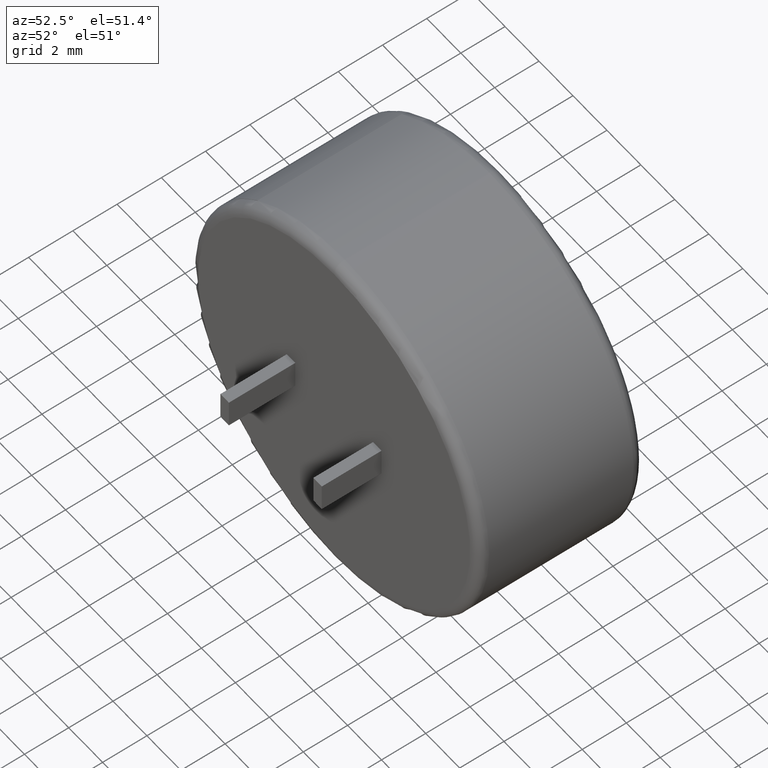
[diagram: clean part render]
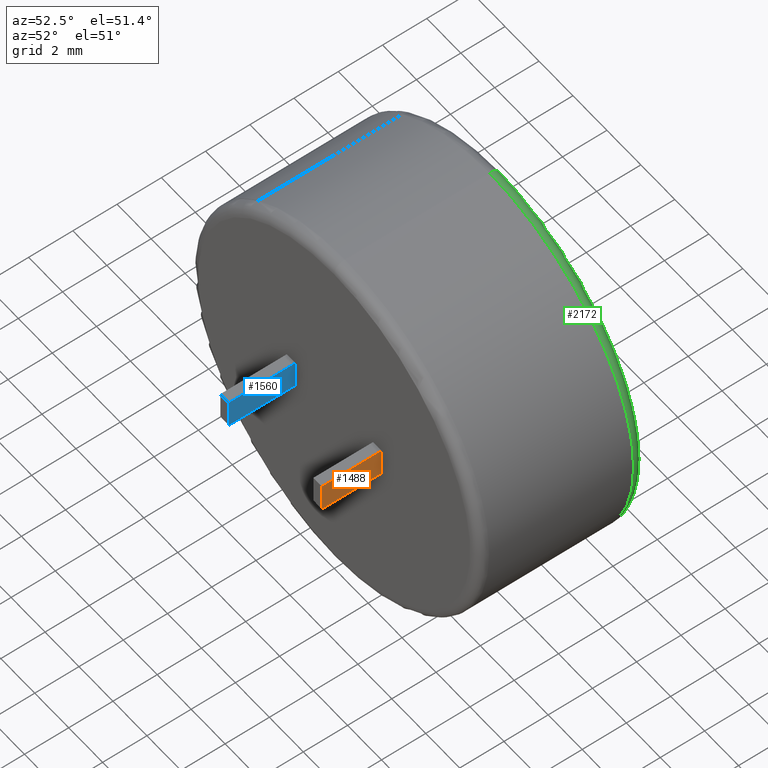
[diagram: same view with three faces highlighted in distinct colors, each labeled with its STEP entity id]
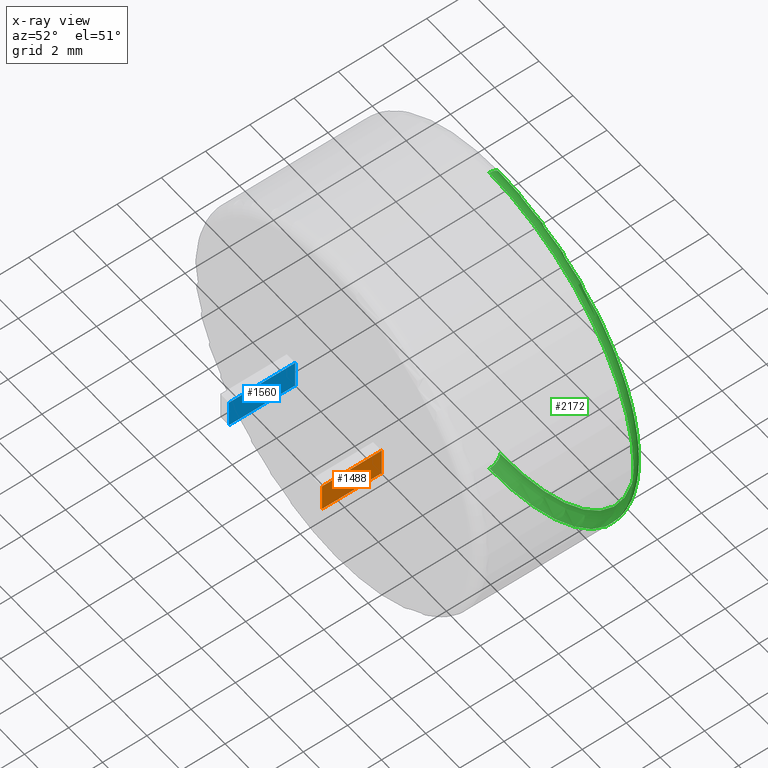
[diagram: x-ray of the same camera — body ghosted, the three highlighted faces saturated]
A machine part, auxiliary view with three faces highlighted in distinct colors.
The next image is the same camera in x-ray (body ghosted, the three faces saturated) — at least one of them is partly hidden behind the body in this view.
Their STEP definitions:

[orange] entity #1488 — the highlighted planar face has unit normal (-1, 0, 0).
#13 = CARTESIAN_POINT ( 'NONE',  ( 2.790000000000000000, -2.700000000000000200, 0.6499999999999968000 ) ) ;
#140 = AXIS2_PLACEMENT_3D ( 'NONE', #600, #565, #1004 ) ;
#203 = EDGE_CURVE ( 'NONE', #918, #1724, #2557, .T. ) ;
#246 = CARTESIAN_POINT ( 'NONE',  ( 2.790000000000000000, -2.700000000000000200, -0.6500000000000031300 ) ) ;
#274 = VECTOR ( 'NONE', #2230, 1000.000000000000000 ) ;
#468 = EDGE_CURVE ( 'NONE', #1824, #1724, #1697, .T. ) ;
#499 = VERTEX_POINT ( 'NONE', #246 ) ;
#565 = DIRECTION ( 'NONE',  ( -1.000000000000000000, 0.0000000000000000000, 0.0000000000000000000 ) ) ;
#600 = CARTESIAN_POINT ( 'NONE',  ( 2.790000000000000000, -2.700000000000000200, -3.154584513016134000E-015 ) ) ;
#803 = EDGE_CURVE ( 'NONE', #499, #918, #2491, .T. ) ;
#896 = CARTESIAN_POINT ( 'NONE',  ( 2.790000000000000000, 0.0000000000000000000, -0.6500000000000031300 ) ) ;
#901 = LINE ( 'NONE', #2017, #274 ) ;
#913 = CARTESIAN_POINT ( 'NONE',  ( 2.790000000000000000, -2.700000000000000200, 0.6499999999999968000 ) ) ;
#918 = VERTEX_POINT ( 'NONE', #896 ) ;
#993 = ORIENTED_EDGE ( 'NONE', *, *, #1980, .F. ) ;
#998 = VECTOR ( 'NONE', #2559, 1000.000000000000000 ) ;
#1004 = DIRECTION ( 'NONE',  ( 0.0000000000000000000, 0.0000000000000000000, 1.000000000000000000 ) ) ;
#1076 = CARTESIAN_POINT ( 'NONE',  ( 2.790000000000000000, -2.700000000000000200, -0.6500000000000031300 ) ) ;
#1161 = VECTOR ( 'NONE', #2175, 1000.000000000000000 ) ;
#1174 = DIRECTION ( 'NONE',  ( 0.0000000000000000000, 0.0000000000000000000, 1.000000000000000000 ) ) ;
#1427 = PLANE ( 'NONE',  #140 ) ;
#1488 = ADVANCED_FACE ( 'NONE', ( #1840 ), #1427, .F. ) ;
#1597 = ORIENTED_EDGE ( 'NONE', *, *, #203, .T. ) ;
#1697 = LINE ( 'NONE', #13, #1161 ) ;
#1724 = VERTEX_POINT ( 'NONE', #2132 ) ;
#1824 = VERTEX_POINT ( 'NONE', #913 ) ;
#1840 = FACE_OUTER_BOUND ( 'NONE', #2383, .T. ) ;
#1980 = EDGE_CURVE ( 'NONE', #499, #1824, #901, .T. ) ;
#2017 = CARTESIAN_POINT ( 'NONE',  ( 2.790000000000000000, -2.700000000000000200, -0.6500000000000031300 ) ) ;
#2019 = ORIENTED_EDGE ( 'NONE', *, *, #803, .T. ) ;
#2042 = CARTESIAN_POINT ( 'NONE',  ( 2.790000000000000000, 0.0000000000000000000, -3.154584513016134000E-015 ) ) ;
#2132 = CARTESIAN_POINT ( 'NONE',  ( 2.790000000000000000, 0.0000000000000000000, 0.6499999999999968000 ) ) ;
#2175 = DIRECTION ( 'NONE',  ( -0.0000000000000000000, 1.000000000000000000, -0.0000000000000000000 ) ) ;
#2230 = DIRECTION ( 'NONE',  ( 0.0000000000000000000, 0.0000000000000000000, 1.000000000000000000 ) ) ;
#2383 = EDGE_LOOP ( 'NONE', ( #1597, #2748, #993, #2019 ) ) ;
#2453 = VECTOR ( 'NONE', #1174, 1000.000000000000000 ) ;
#2491 = LINE ( 'NONE', #1076, #998 ) ;
#2557 = LINE ( 'NONE', #2042, #2453 ) ;
#2559 = DIRECTION ( 'NONE',  ( -0.0000000000000000000, 1.000000000000000000, -0.0000000000000000000 ) ) ;
#2748 = ORIENTED_EDGE ( 'NONE', *, *, #468, .F. ) ;

[blue] entity #1560 — the highlighted planar face has unit normal (1, 0, 0).
#73 = CARTESIAN_POINT ( 'NONE',  ( -2.289999999999999100, 0.0000000000000000000, 0.6500000000000053500 ) ) ;
#91 = FACE_OUTER_BOUND ( 'NONE', #802, .T. ) ;
#179 = ORIENTED_EDGE ( 'NONE', *, *, #1485, .F. ) ;
#181 = VERTEX_POINT ( 'NONE', #73 ) ;
#193 = DIRECTION ( 'NONE',  ( 0.0000000000000000000, -0.0000000000000000000, -1.000000000000000000 ) ) ;
#195 = EDGE_CURVE ( 'NONE', #533, #2028, #1799, .T. ) ;
#285 = ORIENTED_EDGE ( 'NONE', *, *, #195, .T. ) ;
#444 = CARTESIAN_POINT ( 'NONE',  ( -2.289999999999999100, -3.000000000000000000, -0.6499999999999945800 ) ) ;
#506 = LINE ( 'NONE', #1313, #2688 ) ;
#533 = VERTEX_POINT ( 'NONE', #1804 ) ;
#575 = LINE ( 'NONE', #1652, #2326 ) ;
#802 = EDGE_LOOP ( 'NONE', ( #1758, #179, #285, #1850 ) ) ;
#819 = DIRECTION ( 'NONE',  ( 0.0000000000000000000, 0.0000000000000000000, -1.000000000000000000 ) ) ;
#862 = DIRECTION ( 'NONE',  ( -0.0000000000000000000, 1.000000000000000000, -0.0000000000000000000 ) ) ;
#888 = CARTESIAN_POINT ( 'NONE',  ( -2.289999999999999100, 0.0000000000000000000, -0.6499999999999945800 ) ) ;
#1213 = DIRECTION ( 'NONE',  ( -0.0000000000000000000, 1.000000000000000000, -0.0000000000000000000 ) ) ;
#1259 = CARTESIAN_POINT ( 'NONE',  ( -2.289999999999999100, -3.000000000000000000, 0.6500000000000053500 ) ) ;
#1313 = CARTESIAN_POINT ( 'NONE',  ( -2.289999999999999100, -3.000000000000000000, -0.6499999999999945800 ) ) ;
#1342 = VECTOR ( 'NONE', #1213, 1000.000000000000000 ) ;
#1482 = PLANE ( 'NONE',  #1983 ) ;
#1485 = EDGE_CURVE ( 'NONE', #533, #181, #1901, .T. ) ;
#1560 = ADVANCED_FACE ( 'NONE', ( #91 ), #1482, .T. ) ;
#1603 = DIRECTION ( 'NONE',  ( 0.0000000000000000000, -0.0000000000000000000, -1.000000000000000000 ) ) ;
#1652 = CARTESIAN_POINT ( 'NONE',  ( -2.289999999999999100, 0.0000000000000000000, 0.6500000000000053500 ) ) ;
#1699 = VERTEX_POINT ( 'NONE', #888 ) ;
#1708 = DIRECTION ( 'NONE',  ( 1.000000000000000000, 0.0000000000000000000, 0.0000000000000000000 ) ) ;
#1735 = EDGE_CURVE ( 'NONE', #2028, #1699, #506, .T. ) ;
#1758 = ORIENTED_EDGE ( 'NONE', *, *, #2607, .F. ) ;
#1799 = LINE ( 'NONE', #2658, #2490 ) ;
#1804 = CARTESIAN_POINT ( 'NONE',  ( -2.289999999999999100, -3.000000000000000000, 0.6500000000000053500 ) ) ;
#1850 = ORIENTED_EDGE ( 'NONE', *, *, #1735, .T. ) ;
#1901 = LINE ( 'NONE', #2267, #1342 ) ;
#1983 = AXIS2_PLACEMENT_3D ( 'NONE', #1259, #1708, #819 ) ;
#2028 = VERTEX_POINT ( 'NONE', #444 ) ;
#2267 = CARTESIAN_POINT ( 'NONE',  ( -2.289999999999999100, -3.000000000000000000, 0.6500000000000053500 ) ) ;
#2326 = VECTOR ( 'NONE', #193, 1000.000000000000000 ) ;
#2490 = VECTOR ( 'NONE', #1603, 1000.000000000000000 ) ;
#2607 = EDGE_CURVE ( 'NONE', #181, #1699, #575, .T. ) ;
#2658 = CARTESIAN_POINT ( 'NONE',  ( -2.289999999999999100, -3.000000000000000000, 0.6500000000000053500 ) ) ;
#2688 = VECTOR ( 'NONE', #862, 1000.000000000000000 ) ;

[green] entity #2172 — the highlighted toroidal blend (fillet) surface has major radius 8.0163 mm and minor (blend) radius 0.4838 mm.
#5 = DIRECTION ( 'NONE',  ( 0.0000000000000000000, 1.000000000000000000, 0.0000000000000000000 ) ) ;
#86 = CIRCLE ( 'NONE', #1714, 8.016250000000001200 ) ;
#210 = DIRECTION ( 'NONE',  ( 1.000000000000000000, -0.0000000000000000000, 1.224646799147353200E-016 ) ) ;
#232 = TOROIDAL_SURFACE ( 'NONE', #2631, 8.016250000000001200, 0.4837500000000000100 ) ;
#301 = VERTEX_POINT ( 'NONE', #2324 ) ;
#314 = DIRECTION ( 'NONE',  ( 0.0000000000000000000, 1.000000000000000000, 0.0000000000000000000 ) ) ;
#368 = EDGE_LOOP ( 'NONE', ( #1841, #919, #640, #1949 ) ) ;
#537 = CIRCLE ( 'NONE', #2289, 8.500000000000000000 ) ;
#640 = ORIENTED_EDGE ( 'NONE', *, *, #1874, .F. ) ;
#834 = EDGE_CURVE ( 'NONE', #1013, #301, #2065, .T. ) ;
#919 = ORIENTED_EDGE ( 'NONE', *, *, #2073, .T. ) ;
#965 = FACE_OUTER_BOUND ( 'NONE', #368, .T. ) ;
#991 = CARTESIAN_POINT ( 'NONE',  ( 9.817074903664972700E-016, 7.016250000000000300, -8.016250000000001200 ) ) ;
#1013 = VERTEX_POINT ( 'NONE', #1957 ) ;
#1027 = CIRCLE ( 'NONE', #1352, 0.4837499999999997900 ) ;
#1040 = CARTESIAN_POINT ( 'NONE',  ( 0.0000000000000000000, 7.016250000000000300, 8.016250000000001200 ) ) ;
#1168 = CARTESIAN_POINT ( 'NONE',  ( 0.0000000000000000000, 7.016250000000000300, -8.500000000000000000 ) ) ;
#1317 = DIRECTION ( 'NONE',  ( 0.0000000000000000000, 0.0000000000000000000, 1.000000000000000000 ) ) ;
#1344 = DIRECTION ( 'NONE',  ( 0.0000000000000000000, 0.0000000000000000000, 1.000000000000000000 ) ) ;
#1352 = AXIS2_PLACEMENT_3D ( 'NONE', #991, #210, #1913 ) ;
#1388 = VERTEX_POINT ( 'NONE', #1168 ) ;
#1423 = CARTESIAN_POINT ( 'NONE',  ( 0.0000000000000000000, 7.016250000000000300, 0.0000000000000000000 ) ) ;
#1486 = DIRECTION ( 'NONE',  ( -0.0000000000000000000, -1.000000000000000000, -0.0000000000000000000 ) ) ;
#1499 = DIRECTION ( 'NONE',  ( -1.000000000000000000, 0.0000000000000000000, 0.0000000000000000000 ) ) ;
#1714 = AXIS2_PLACEMENT_3D ( 'NONE', #2398, #314, #1344 ) ;
#1841 = ORIENTED_EDGE ( 'NONE', *, *, #2036, .F. ) ;
#1874 = EDGE_CURVE ( 'NONE', #301, #2396, #86, .T. ) ;
#1913 = DIRECTION ( 'NONE',  ( 1.224646799147353700E-016, 0.0000000000000000000, -1.000000000000000000 ) ) ;
#1949 = ORIENTED_EDGE ( 'NONE', *, *, #834, .F. ) ;
#1957 = CARTESIAN_POINT ( 'NONE',  ( 1.040949779275250100E-015, 7.016250000000000300, 8.500000000000000000 ) ) ;
#2036 = EDGE_CURVE ( 'NONE', #1388, #1013, #537, .T. ) ;
#2065 = CIRCLE ( 'NONE', #2393, 0.4837499999999997900 ) ;
#2073 = EDGE_CURVE ( 'NONE', #1388, #2396, #1027, .T. ) ;
#2172 = ADVANCED_FACE ( 'NONE', ( #965 ), #232, .T. ) ;
#2289 = AXIS2_PLACEMENT_3D ( 'NONE', #2336, #1486, #2541 ) ;
#2324 = CARTESIAN_POINT ( 'NONE',  ( 0.0000000000000000000, 7.500000000000000000, 8.016250000000001200 ) ) ;
#2336 = CARTESIAN_POINT ( 'NONE',  ( 0.0000000000000000000, 7.016250000000000300, 0.0000000000000000000 ) ) ;
#2350 = DIRECTION ( 'NONE',  ( 0.0000000000000000000, 0.0000000000000000000, 1.000000000000000000 ) ) ;
#2393 = AXIS2_PLACEMENT_3D ( 'NONE', #1040, #1499, #2350 ) ;
#2396 = VERTEX_POINT ( 'NONE', #2698 ) ;
#2398 = CARTESIAN_POINT ( 'NONE',  ( 0.0000000000000000000, 7.500000000000000000, 0.0000000000000000000 ) ) ;
#2541 = DIRECTION ( 'NONE',  ( 0.0000000000000000000, 0.0000000000000000000, 1.000000000000000000 ) ) ;
#2631 = AXIS2_PLACEMENT_3D ( 'NONE', #1423, #5, #1317 ) ;
#2698 = CARTESIAN_POINT ( 'NONE',  ( 1.011328634820873600E-015, 7.500000000000000000, -8.016250000000001200 ) ) ;